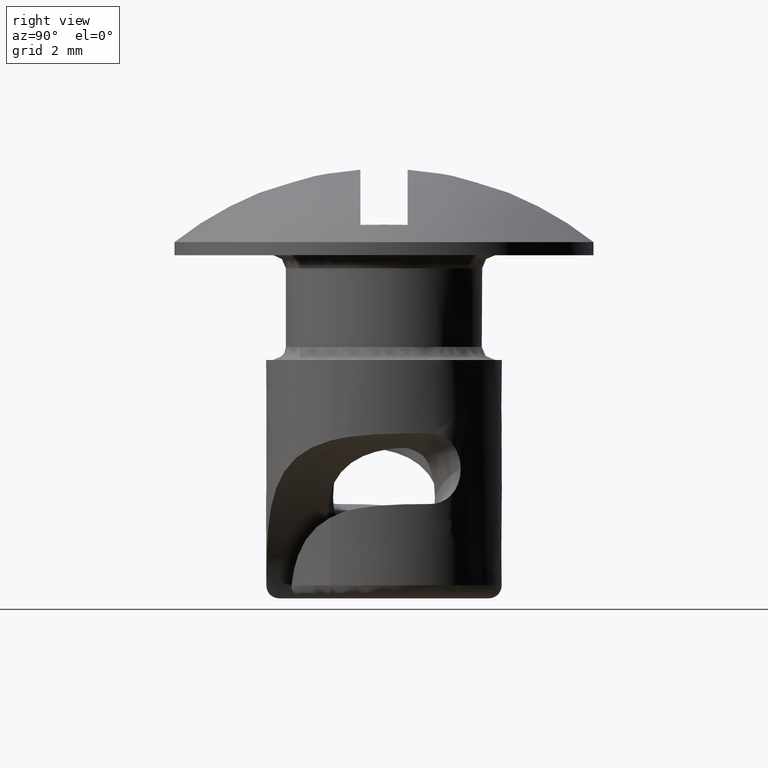
[diagram: clean part render]
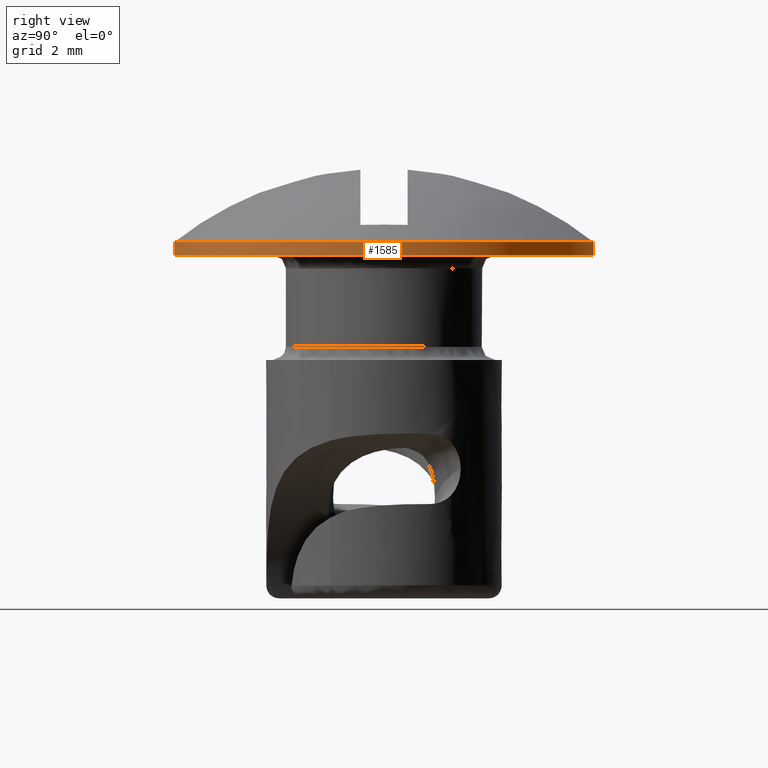
[diagram: same view with one face highlighted and labeled with its STEP entity id]
A machine part, right view. The second image highlights one B-rep face of the part: STEP entity #1585.
In plain terms, the highlighted face is a freeform B-spline surface patch.
Its self-contained STEP definition (entity closure, byte-faithful):
#1401=CARTESIAN_POINT('',(-6.108445143523718,5.165936307056203,0.512500000000000));
#1402=CARTESIAN_POINT('',(-5.960598265852118,5.340757382698318,0.512500000000000));
#1403=CARTESIAN_POINT('',(-5.802994968098299,5.506836605550030,0.512500000000000));
#1404=CARTESIAN_POINT('',(-0.296158362548269,11.309831573648330,0.512500000000000));
#1405=CARTESIAN_POINT('',(5.506836605550030,5.802994968098299,0.512500000000000));
#1406=CARTESIAN_POINT('',(11.309831573648330,0.296158362548269,0.512500000000000));
#1407=CARTESIAN_POINT('',(5.802994968098299,-5.506836605550030,0.512500000000000));
#1408=CARTESIAN_POINT('',(0.296158362548269,-11.309831573648330,0.512500000000000));
#1409=CARTESIAN_POINT('',(-5.506836605550030,-5.802994968098299,0.512500000000000));
#1410=CARTESIAN_POINT('',(-6.108445143523718,5.165936307056203,-0.012812500000000));
#1411=CARTESIAN_POINT('',(-5.960598265852118,5.340757382698318,-0.012812500000000));
#1412=CARTESIAN_POINT('',(-5.802994968098299,5.506836605550030,-0.012812500000000));
#1413=CARTESIAN_POINT('',(-0.296158362548269,11.309831573648330,-0.012812500000000));
#1414=CARTESIAN_POINT('',(5.506836605550030,5.802994968098299,-0.012812500000000));
#1415=CARTESIAN_POINT('',(11.309831573648330,0.296158362548269,-0.012812500000000));
#1416=CARTESIAN_POINT('',(5.802994968098299,-5.506836605550030,-0.012812500000000));
#1417=CARTESIAN_POINT('',(0.296158362548269,-11.309831573648330,-0.012812500000000));
#1418=CARTESIAN_POINT('',(-5.506836605550030,-5.802994968098299,-0.012812500000000));
#1426=(BOUNDED_SURFACE()B_SPLINE_SURFACE(2,1,((#1401,#1410),(#1402,#1411),(#1403,#1412),(#1404,#1413),(#1405,#1414),(#1406,#1415),(#1407,#1416),(#1408,#1417),(#1409,#1418)),.UNSPECIFIED.,.F.,.F.,.U.)B_SPLINE_SURFACE_WITH_KNOTS((3,2,2,2,3),(2,2),(0.0,0.530193359837562,13.785027355776601,27.039861351715640,40.294695347654667),(0.0,1.0),.UNSPECIFIED.)GEOMETRIC_REPRESENTATION_ITEM()RATIONAL_B_SPLINE_SURFACE(((0.977505800795127,0.977505800795127),(0.988284271247462,0.988284271247462),(1.0,1.0),(0.707106781186548,0.707106781186548),(1.0,1.0),(0.707106781186548,0.707106781186548),(1.0,1.0),(0.707106781186548,0.707106781186548),(1.0,1.0)))REPRESENTATION_ITEM('')SURFACE());
#1427=CARTESIAN_POINT('',(-6.108445146648361,5.165936303361479,1.490700E-016));
#1428=VERTEX_POINT('',#1427);
#1429=CARTESIAN_POINT('',(0.0,8.0,0.0));
#1430=VERTEX_POINT('',#1429);
#1431=CARTESIAN_POINT('',(-6.108445146648361,5.165936303361479,1.490700E-016));
#1432=CARTESIAN_POINT('',(-5.921440214443203,5.387063374007684,1.445063E-016));
#1433=CARTESIAN_POINT('',(-5.473636259875938,5.861733517324120,1.335782E-016));
#1434=CARTESIAN_POINT('',(-4.747462341821383,6.463912742416481,1.158567E-016));
#1435=CARTESIAN_POINT('',(-3.953966332819947,6.972677733854850,9.649226E-017));
#1436=CARTESIAN_POINT('',(-3.061322015997599,7.416685385574936,7.470825E-017));
#1437=CARTESIAN_POINT('',(-2.116406503488543,7.739493080620735,5.164861E-017));
#1438=CARTESIAN_POINT('',(-1.049796683391951,7.952174931546182,2.561915E-017));
#1439=CARTESIAN_POINT('',(-0.380101469792940,8.000019132423768,9.275964E-018));
#1440=CARTESIAN_POINT('',(0.0,8.0,0.0));
#1441=B_SPLINE_CURVE_WITH_KNOTS('',3,(#1431,#1432,#1433,#1434,#1435,#1436,#1437,#1438,#1439,#1440),.UNSPECIFIED.,.F.,.U.,(4,1,1,1,1,1,1,4),(4.456098E-010,0.868801925251820,1.954807718723025,2.823611836914373,3.692413548511617,4.941318659066016,5.810122264425410,6.950426328898213),.UNSPECIFIED.);
#1442=EDGE_CURVE('',#1428,#1430,#1441,.T.);
#1443=ORIENTED_EDGE('',*,*,#1442,.F.);
#1444=CARTESIAN_POINT('',(-6.108445146609808,5.165936303407065,0.500000000000000));
#1445=VERTEX_POINT('',#1444);
#1446=CARTESIAN_POINT('',(-6.108445146609808,5.165936303407065,0.500000000000000));
#1447=CARTESIAN_POINT('',(-6.108445146648361,5.165936303361479,1.490700E-016));
#1448=QUASI_UNIFORM_CURVE('',1,(#1446,#1447),.UNSPECIFIED.,.F.,.U.);
#1449=EDGE_CURVE('',#1445,#1428,#1448,.T.);
#1450=ORIENTED_EDGE('',*,*,#1449,.F.);
#1451=CARTESIAN_POINT('',(0.0,8.0,0.500000000000000));
#1452=VERTEX_POINT('',#1451);
#1453=CARTESIAN_POINT('',(-6.108445146609808,5.165936303407065,0.500000000000000));
#1454=CARTESIAN_POINT('',(-5.781228534095654,5.552953862516043,0.499999999999999));
#1455=CARTESIAN_POINT('',(-5.260961433937972,6.061126554496942,0.500000000000000));
#1456=CARTESIAN_POINT('',(-4.446075100393820,6.665328785853367,0.500000000000000));
#1457=CARTESIAN_POINT('',(-3.763225370448310,7.077449653132703,0.500000000000000));
#1458=CARTESIAN_POINT('',(-3.039724019895477,7.413117677768399,0.500000000000000));
#1459=CARTESIAN_POINT('',(-2.271042093930768,7.684488232143813,0.500000000000000));
#1460=CARTESIAN_POINT('',(-1.285086733787338,7.926786265423475,0.499999999999999));
#1461=CARTESIAN_POINT('',(-0.488704902109341,8.000053739638004,0.500000000000003));
#1462=CARTESIAN_POINT('',(0.0,8.0,0.500000000000000));
#1463=B_SPLINE_CURVE_WITH_KNOTS('',3,(#1453,#1454,#1455,#1456,#1457,#1458,#1459,#1460,#1461,#1462),.UNSPECIFIED.,.F.,.U.,(4,1,1,1,1,1,1,4),(4.453939E-010,1.520405462171589,2.172008828538554,3.040812581118232,3.909614215382330,4.561216983949972,5.484320834856538,6.950426328838508),.UNSPECIFIED.);
#1464=EDGE_CURVE('',#1445,#1452,#1463,.T.);
#1465=ORIENTED_EDGE('',*,*,#1464,.T.);
#1466=CARTESIAN_POINT('',(8.0,0.0,0.500000000000000));
#1467=VERTEX_POINT('',#1466);
#1468=CARTESIAN_POINT('',(0.0,8.0,0.500000000000000));
#1469=CARTESIAN_POINT('',(0.523605100333084,8.000077819818170,0.500000000000001));
#1470=CARTESIAN_POINT('',(1.292609177873124,7.924212381373717,0.500000000000000));
#1471=CARTESIAN_POINT('',(2.357980548853749,7.660811467807122,0.500000000000000));
#1472=CARTESIAN_POINT('',(3.081820477378824,7.396800391334478,0.499999999999999));
#1473=CARTESIAN_POINT('',(3.849253676920382,7.028048499290495,0.499999999999999));
#1474=CARTESIAN_POINT('',(4.493669015589367,6.636409047009805,0.500000000000002));
#1475=CARTESIAN_POINT('',(5.171425474702173,6.120731704196090,0.499999999999996));
#1476=CARTESIAN_POINT('',(5.819774237170014,5.518464741348027,0.500000000000003));
#1477=CARTESIAN_POINT('',(6.389936782185842,4.840842973043550,0.499999999999999));
#1478=CARTESIAN_POINT('',(6.899469063299121,4.078259526016325,0.499999999999998));
#1479=CARTESIAN_POINT('',(7.373124651005399,3.178980014905418,0.500000000000012));
#1480=CARTESIAN_POINT('',(7.715688125374668,2.202696991234716,0.499999999999976));
#1481=CARTESIAN_POINT('',(7.946347497744642,1.096273625012439,0.500000000000038));
#1482=CARTESIAN_POINT('',(8.000034106001682,0.425426374782398,0.499999999999951));
#1483=CARTESIAN_POINT('',(8.0,0.0,0.500000000000000));
#1484=B_SPLINE_CURVE_WITH_KNOTS('',3,(#1468,#1469,#1470,#1471,#1472,#1473,#1474,#1475,#1476,#1477,#1478,#1479,#1480,#1481,#1482,#1483),.UNSPECIFIED.,.F.,.U.,(4,1,1,1,1,1,1,1,1,1,1,1,1,4),(3.737785E-009,1.570795347263246,2.307109379260121,3.288860096697016,3.877911562872143,4.859663810423346,5.546888452856755,6.430451478341454,7.510377531238497,8.197603331953292,9.179355078308072,10.553807688468630,11.290117044579640,12.566390327347110),.UNSPECIFIED.);
#1485=EDGE_CURVE('',#1452,#1467,#1484,.T.);
#1486=ORIENTED_EDGE('',*,*,#1485,.T.);
#1487=CARTESIAN_POINT('',(0.0,-8.0,0.500000000000000));
#1488=VERTEX_POINT('',#1487);
#1489=CARTESIAN_POINT('',(8.0,0.0,0.500000000000000));
#1490=CARTESIAN_POINT('',(8.000066471843589,-0.523602067684515,0.500000000000000));
#1491=CARTESIAN_POINT('',(7.911324303703109,-1.423512295133016,0.499999999999999));
#1492=CARTESIAN_POINT('',(7.608453157865077,-2.531074969035748,0.500000000000001));
#1493=CARTESIAN_POINT('',(7.283618342336504,-3.336142841372869,0.499999999999998));
#1494=CARTESIAN_POINT('',(6.908679409178212,-4.064267982172808,0.500000000000002));
#1495=CARTESIAN_POINT('',(6.394331693737133,-4.844385558107800,0.499999999999997));
#1496=CARTESIAN_POINT('',(5.762326147898097,-5.577043302168278,0.500000000000002));
#1497=CARTESIAN_POINT('',(4.975411345940429,-6.294687540349746,0.499999999999999));
#1498=CARTESIAN_POINT('',(4.166737953573404,-6.856839943069743,0.500000000000000));
#1499=CARTESIAN_POINT('',(3.365541966229507,-7.269374550032214,0.500000000000000));
#1500=CARTESIAN_POINT('',(2.592112942522268,-7.584208612140167,0.499999999999999));
#1501=CARTESIAN_POINT('',(1.788820640456813,-7.817162319524943,0.500000000000002));
#1502=CARTESIAN_POINT('',(0.867206230705312,-7.968336760329856,0.499999999999998));
#1503=CARTESIAN_POINT('',(0.294522645826081,-8.000007090595569,0.499999999999996));
#1504=CARTESIAN_POINT('',(0.0,-8.0,0.500000000000000));
#1505=B_SPLINE_CURVE_WITH_KNOTS('',3,(#1489,#1490,#1491,#1492,#1493,#1494,#1495,#1496,#1497,#1498,#1499,#1500,#1501,#1502,#1503,#1504),.UNSPECIFIED.,.F.,.U.,(4,1,1,1,1,1,1,1,1,1,1,1,1,4),(3.736023E-009,1.570795347261836,2.699809401797364,3.436123243338871,4.172434716509640,5.154184007189382,6.234110237412941,7.068588209944084,8.344868161097967,9.179355078308136,9.768405124059592,10.848331303355110,11.682821842332769,12.566390327347110),.UNSPECIFIED.);
#1506=EDGE_CURVE('',#1467,#1488,#1505,.T.);
#1507=ORIENTED_EDGE('',*,*,#1506,.T.);
#1508=CARTESIAN_POINT('',(-5.506836608776814,-5.802994965036199,0.500000000000000));
#1509=VERTEX_POINT('',#1508);
#1510=CARTESIAN_POINT('',(0.0,-8.0,0.500000000000000));
#1511=CARTESIAN_POINT('',(-0.332158146723391,-8.000010949530697,0.500000000000000));
#1512=CARTESIAN_POINT('',(-0.885752017941929,-7.965470188802968,0.499999999999999));
#1513=CARTESIAN_POINT('',(-1.713234539832966,-7.826763811828738,0.500000000000001));
#1514=CARTESIAN_POINT('',(-2.585523801657516,-7.593816729099626,0.499999999999999));
#1515=CARTESIAN_POINT('',(-3.466236233729109,-7.233335678378598,0.500000000000000));
#1516=CARTESIAN_POINT('',(-4.501091271912613,-6.650301584844190,0.500000000000001));
#1517=CARTESIAN_POINT('',(-5.128261127996913,-6.162346164191503,0.499999999999999));
#1518=CARTESIAN_POINT('',(-5.506836608776814,-5.802994965036199,0.500000000000000));
#1519=B_SPLINE_CURVE_WITH_KNOTS('',3,(#1510,#1511,#1512,#1513,#1514,#1515,#1516,#1517,#1518),.UNSPECIFIED.,.F.,.U.,(4,1,1,1,1,1,4),(1.496549E-009,0.996474304026505,1.660792732008585,2.514916497249432,3.701192294897526,4.507864776285981,6.073754704730013),.UNSPECIFIED.);
#1520=EDGE_CURVE('',#1488,#1509,#1519,.T.);
#1521=ORIENTED_EDGE('',*,*,#1520,.T.);
#1522=CARTESIAN_POINT('',(-5.506836608817125,-5.802994964997945,1.483189E-016));
#1523=VERTEX_POINT('',#1522);
#1524=CARTESIAN_POINT('',(-5.506836608776814,-5.802994965036199,0.500000000000000));
#1525=CARTESIAN_POINT('',(-5.506836608817125,-5.802994964997945,1.483189E-016));
#1526=QUASI_UNIFORM_CURVE('',1,(#1524,#1525),.UNSPECIFIED.,.F.,.U.);
#1527=EDGE_CURVE('',#1509,#1523,#1526,.T.);
#1528=ORIENTED_EDGE('',*,*,#1527,.T.);
#1529=CARTESIAN_POINT('',(0.0,-8.0,0.0));
#1530=VERTEX_POINT('',#1529);
#1531=CARTESIAN_POINT('',(0.0,-8.0,0.0));
#1532=CARTESIAN_POINT('',(-0.427062834076466,-8.000030397623652,1.150233E-017));
#1533=CARTESIAN_POINT('',(-1.043915326606932,-7.950479866655156,2.811638E-017));
#1534=CARTESIAN_POINT('',(-1.990936007807000,-7.762714731994346,5.362305E-017));
#1535=CARTESIAN_POINT('',(-2.764029555864966,-7.526467486467722,7.444523E-017));
#1536=CARTESIAN_POINT('',(-3.707219531204546,-7.114039587153839,9.984872E-017));
#1537=CARTESIAN_POINT('',(-4.619002603017066,-6.567788298326768,1.244063E-016));
#1538=CARTESIAN_POINT('',(-5.231487119455626,-6.064310611007468,1.409027E-016));
#1539=CARTESIAN_POINT('',(-5.506836608817125,-5.802994964997945,1.483189E-016));
#1540=B_SPLINE_CURVE_WITH_KNOTS('',3,(#1531,#1532,#1533,#1534,#1535,#1536,#1537,#1538,#1539),.UNSPECIFIED.,.F.,.U.,(4,1,1,1,1,1,4),(1.495853E-009,1.281181978174824,1.850597240551623,2.894527295920699,3.701192294931094,4.934925783004312,6.073754704785588),.UNSPECIFIED.);
#1541=EDGE_CURVE('',#1530,#1523,#1540,.T.);
#1542=ORIENTED_EDGE('',*,*,#1541,.F.);
#1543=CARTESIAN_POINT('',(8.0,0.0,0.0));
#1544=VERTEX_POINT('',#1543);
#1545=CARTESIAN_POINT('',(8.0,0.0,0.0));
#1546=CARTESIAN_POINT('',(8.000068928292748,-0.523604130495926,0.0));
#1547=CARTESIAN_POINT('',(7.924219897715567,-1.292609637553517,0.0));
#1548=CARTESIAN_POINT('',(7.633308597523266,-2.469295385647325,0.0));
#1549=CARTESIAN_POINT('',(7.252137523914993,-3.448513548608568,0.0));
#1550=CARTESIAN_POINT('',(6.680158842436222,-4.443863759808995,0.0));
#1551=CARTESIAN_POINT('',(6.072096623734706,-5.237980725003066,0.0));
#1552=CARTESIAN_POINT('',(5.499861496069680,-5.824420189664740,0.0));
#1553=CARTESIAN_POINT('',(4.928102062613838,-6.314574635337394,0.0));
#1554=CARTESIAN_POINT('',(4.355834854127468,-6.725541921138905,0.0));
#1555=CARTESIAN_POINT('',(3.604457822959369,-7.160382636263115,0.0));
#1556=CARTESIAN_POINT('',(2.733874205158239,-7.543105406198133,0.0));
#1557=CARTESIAN_POINT('',(1.788819522457494,-7.817160905774213,0.0));
#1558=CARTESIAN_POINT('',(0.867206408728402,-7.968336985370075,0.0));
#1559=CARTESIAN_POINT('',(0.294522645719886,-8.000007090708486,0.0));
#1560=CARTESIAN_POINT('',(0.0,-8.0,0.0));
#1561=B_SPLINE_CURVE_WITH_KNOTS('',3,(#1545,#1546,#1547,#1548,#1549,#1550,#1551,#1552,#1553,#1554,#1555,#1556,#1557,#1558,#1559,#1560),.UNSPECIFIED.,.F.,.U.,(4,1,1,1,1,1,1,1,1,1,1,1,1,4),(3.736023E-009,1.570795347261836,2.307109379258924,3.632473321961344,4.712398500387174,5.743236114757354,6.626799704943895,7.166763145746724,8.001252959365861,8.737567562788422,9.768405124059592,10.848331303355110,11.682821842332769,12.566390327347110),.UNSPECIFIED.);
#1562=EDGE_CURVE('',#1544,#1530,#1561,.T.);
#1563=ORIENTED_EDGE('',*,*,#1562,.F.);
#1564=CARTESIAN_POINT('',(0.0,8.0,0.0));
#1565=CARTESIAN_POINT('',(0.523605019436699,8.000077698244294,0.0));
#1566=CARTESIAN_POINT('',(1.292609429214473,7.924212782349589,0.0));
#1567=CARTESIAN_POINT('',(2.357979606494960,7.660809892517407,0.0));
#1568=CARTESIAN_POINT('',(3.251237076316753,7.335022079364065,0.0));
#1569=CARTESIAN_POINT('',(4.094372494247615,6.894272447185560,0.0));
#1570=CARTESIAN_POINT('',(4.906473264963646,6.340765288020543,0.0));
#1571=CARTESIAN_POINT('',(5.577045420508004,5.762328548099690,0.0));
#1572=CARTESIAN_POINT('',(6.261556613251549,5.011725525090956,0.0));
#1573=CARTESIAN_POINT('',(6.830737709396968,4.208813604999055,0.0));
#1574=CARTESIAN_POINT('',(7.235584128758601,3.440051779698336,0.0));
#1575=CARTESIAN_POINT('',(7.536286125463172,2.714094531695074,0.0));
#1576=CARTESIAN_POINT('',(7.749097133722462,2.042338937511431,0.0));
#1577=CARTESIAN_POINT('',(7.946350388792922,1.096274573399178,0.0));
#1578=CARTESIAN_POINT('',(8.000034106001520,0.425426374781998,0.0));
#1579=CARTESIAN_POINT('',(8.0,0.0,0.0));
#1580=B_SPLINE_CURVE_WITH_KNOTS('',3,(#1564,#1565,#1566,#1567,#1568,#1569,#1570,#1571,#1572,#1573,#1574,#1575,#1576,#1577,#1578,#1579),.UNSPECIFIED.,.F.,.U.,(4,1,1,1,1,1,1,1,1,1,1,1,1,4),(3.737785E-009,1.570795347263246,2.307109379260121,3.288860096697016,4.417875504771763,5.154184007189548,6.234110237412831,7.068588209943963,8.197603331953292,9.179355078308072,9.670230662426617,10.553807688468630,11.290117044579640,12.566390327347110),.UNSPECIFIED.);
#1581=EDGE_CURVE('',#1430,#1544,#1580,.T.);
#1582=ORIENTED_EDGE('',*,*,#1581,.F.);
#1583=EDGE_LOOP('',(#1443,#1450,#1465,#1486,#1507,#1521,#1528,#1542,#1563,#1582));
#1584=FACE_OUTER_BOUND('',#1583,.T.);
#1585=ADVANCED_FACE('',(#1584),#1426,.T.);